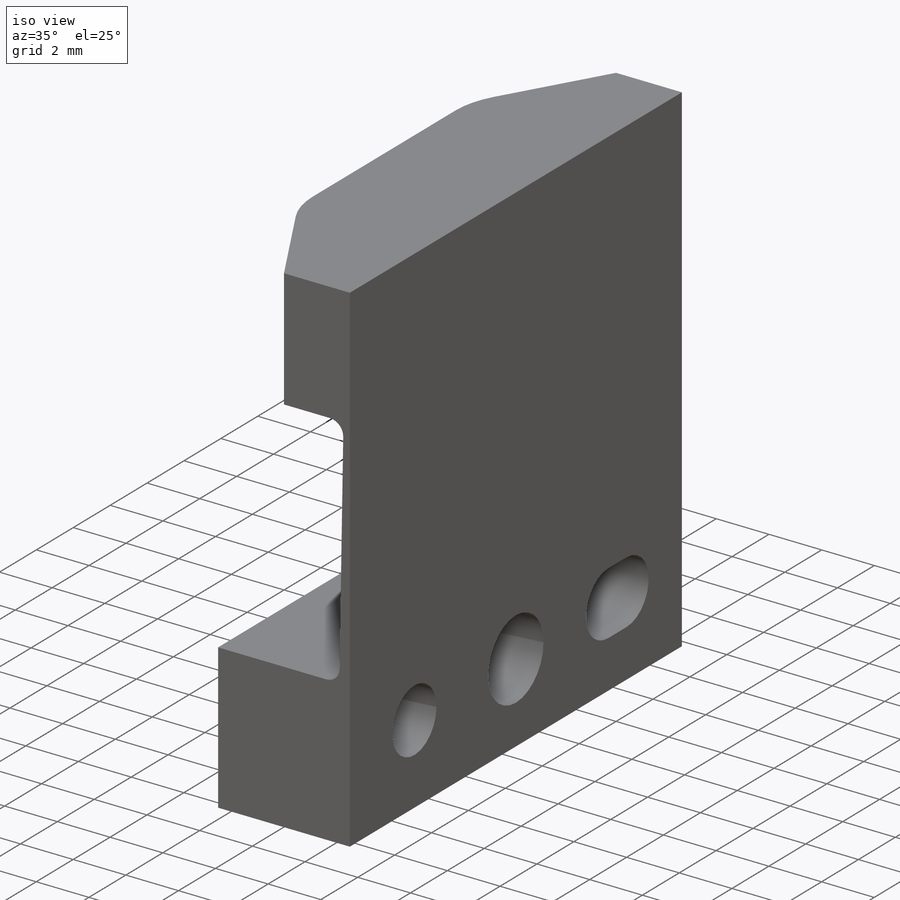
[diagram: iso view]
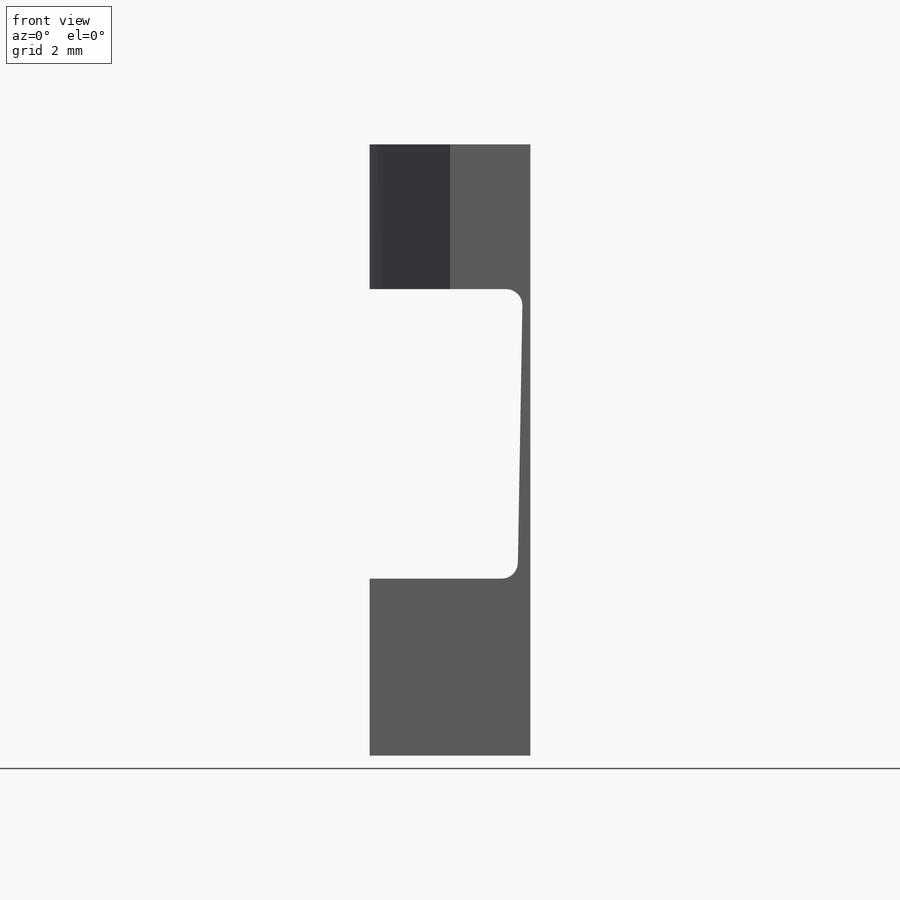
[diagram: front view]
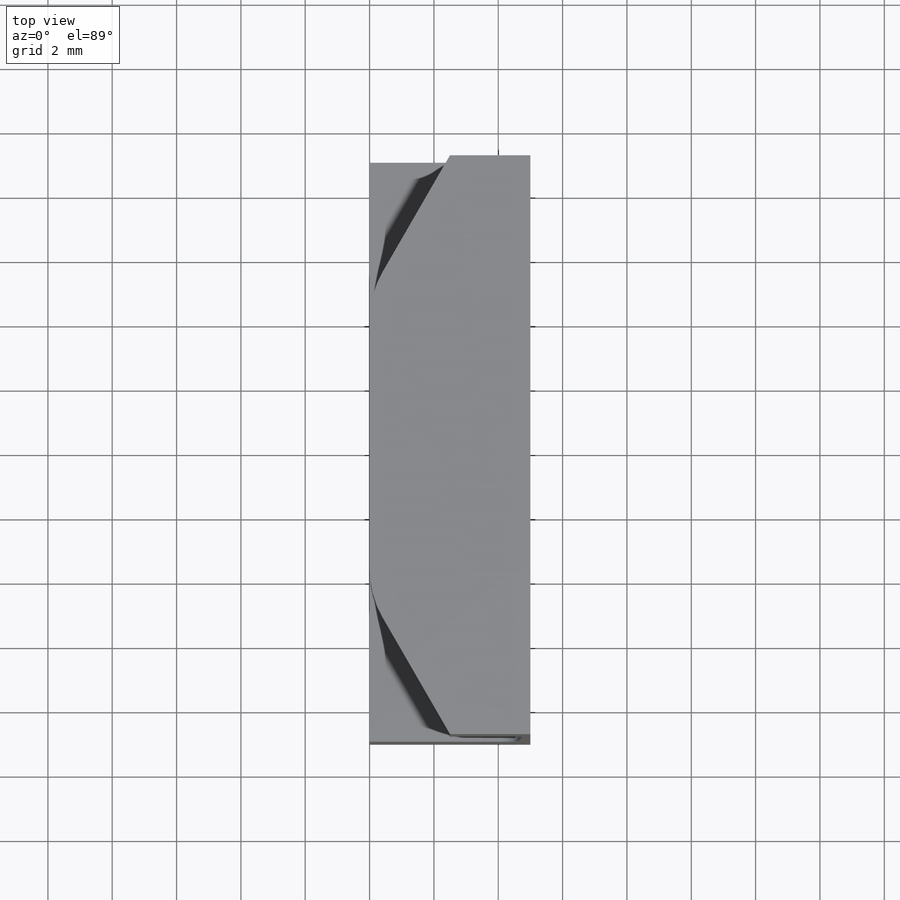
[diagram: top view]
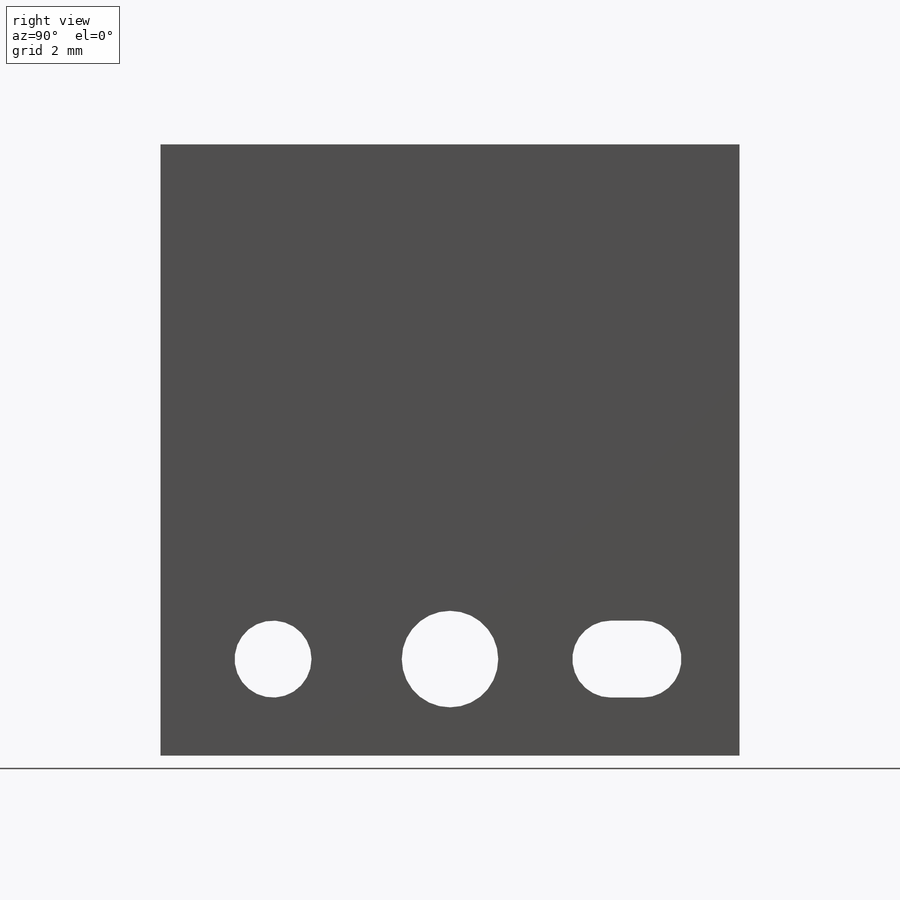
[diagram: right view]
SOLIDWORKS PART (.sldprt)
format: sldprt  version: not decoded by parser v0  size: 262,656 bytes
history: native  units: mm
features: sketch x3, cut_extrude x2, material x1, extrude x1, chamfer x1, fillet x1, mirror x1 (+11 scaffold rows collapsed)
feature tree (21):
  scaffold x11  (default folders/planes/origin — collapsed)
  material  "Ti-6Al-4VSolution treated and aged (SS)"
  sketch  "Sketch4"  dims[c1.D7=1.0mm c1.D9=1.0mm c1.D6=1.0mm c1.D4=0.5mm c2.D6=0.5mm c2.D1=5.5mm c2.D2=17.0mm c2.D3=5.0mm c2.D4=6.0mm c2.D5=1.0mm c3.D6=11.87mm c3.D4=1.0mm c3.D5=5.0mm c3.D7=2.0mm c4.D6=11.5mm c4.D8=10.4mm c4.D4=1.0mm c4.D2=17.0mm c5.D4=7.9mm c5.D2=18.0mm c6.D4=11.277mm c6.D2=19.5mm c7.D4=0.3mm c7.D7=8.0mm c8.D7=~2.839008deg c8.D6=~7.188591mm c9.D6=~2.839008deg c9.D7=8.0mm c10.D7=1.0deg c10.D8=0.25mm]
  extrude  "Boss-Extrude1"  Depth=9mm
  chamfer  "Chamfer1"  Distance=2.5mm Angle=60deg
  fillet  "Fillet1"  Radius=3mm
  mirror  "Mirror1"
  sketch  "Sketch11"  dims[c1.D3=2.9464mm c1.D4=~2.39125mm c2.D3=3.0mm c2.D5=6.0mm c2.D6=2.5mm c2.D1=11.0mm c2.D2=3.0mm c3.D6=1.0mm]
  cut_extrude  "Cut-Extrude1"  [1 undecoded]
  sketch  "Sketch12"  dims[D1=0.0mm]
  cut_extrude  "Cut-Extrude2"  Depth=0.5mm
decode coverage: 7 of 9 modeling features carry decoded parameters
note: ~ marks probable driven/reference dimensions
note: 1 parameter value undecoded
note: suppression state not decoded; provenance and decode notes live in map.json
